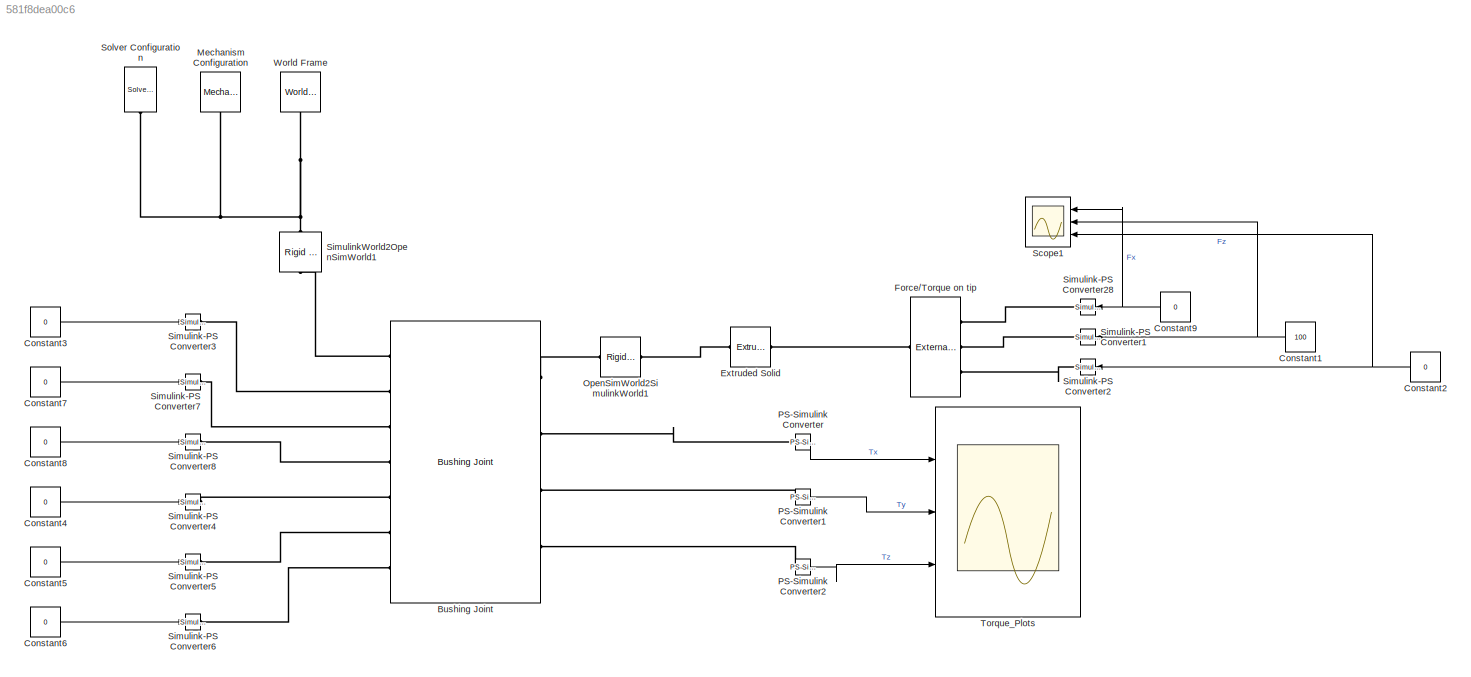
MODEL slx_581f8dea00c6
KIND model
CONFIG AbsTol = auto
CONFIG EnableMultiTasking = off
CONFIG FixedStep = auto
CONFIG MaxStep = auto
CONFIG MinStep = auto
CONFIG RelTol = 1e-3
CONFIG SampleTimeConstraint = Unconstrained
CONFIG SolverName = VariableStepAuto
CONFIG StartTime = 0.0
CONFIG StopTime = 1
BLOCK [Reference] Bushing Joint  REF=sm_lib/Joints/Bushing Joint
  Ports = [0, 0, 0, 0, 0, 7, 4]
  SourceBlock = sm_lib/Joints/Bushing Joint
  SourceProductBaseCode = MS
  SourceType = Bushing Joint
BLOCK [Constant] Constant1
  NameLocation = top
  Value = 100
BLOCK [Constant] Constant2
  NameLocation = top
  Value = 0
BLOCK [Constant] Constant3
  Value = 0
BLOCK [Constant] Constant4
  Value = 0
BLOCK [Constant] Constant5
  Value = 0
BLOCK [Constant] Constant6
  Value = 0
BLOCK [Constant] Constant7
  Value = 0
BLOCK [Constant] Constant8
  Value = 0
BLOCK [Constant] Constant9
  NameLocation = top
  Value = 0
BLOCK [Reference] Extruded Solid  REF=sm_lib/Body Elements/Extruded Solid
  NameLocation = top
  Ports = [0, 0, 0, 0, 0, 1, 1]
  SourceBlock = sm_lib/Body Elements/Extruded Solid
  SourceProductBaseCode = MS
  SourceType = Extruded Solid
BLOCK [Reference] Force//Torque on tip  REF=sm_lib/Forces and
Torques/External Force
and Torque
  NameLocation = top
  Ports = [0, 0, 0, 0, 0, 3, 1]
  SourceBlock = sm_lib/Forces and\nTorques/External Force\nand Torque
  SourceProductBaseCode = MS
  SourceType = External Force\nand Torque
BLOCK [Reference] Mechanism Configuration  REF=sm_lib/Utilities/Mechanism
Configuration
  NameLocation = left
  Ports = [0, 0, 0, 0, 0, 0, 1]
  SourceBlock = sm_lib/Utilities/Mechanism\nConfiguration
  SourceProductBaseCode = MS
  SourceType = Mechanism\nConfiguration
BLOCK [Reference] OpenSimWorld2SimulinkWorld1  REF=sm_lib/Frames and
Transforms/Rigid
Transform
  Ports = [0, 0, 0, 0, 0, 1, 1]
  SourceBlock = sm_lib/Frames and\nTransforms/Rigid\nTransform
  SourceProductBaseCode = MS
  SourceType = Rigid\nTransform
BLOCK [Reference] PS-Simulink Converter  REF=nesl_utility/PS-Simulink
Converter
  Ports = [0, 1, 0, 0, 0, 1]
  SourceBlock = nesl_utility/PS-Simulink\nConverter
  SourceProductBaseCode = PW,SS
  SourceType = PS-Simulink\nConverter
BLOCK [Reference] PS-Simulink Converter1  REF=nesl_utility/PS-Simulink
Converter
  Ports = [0, 1, 0, 0, 0, 1]
  SourceBlock = nesl_utility/PS-Simulink\nConverter
  SourceProductBaseCode = PW,SS
  SourceType = PS-Simulink\nConverter
BLOCK [Reference] PS-Simulink Converter2  REF=nesl_utility/PS-Simulink
Converter
  Ports = [0, 1, 0, 0, 0, 1]
  SourceBlock = nesl_utility/PS-Simulink\nConverter
  SourceProductBaseCode = PW,SS
  SourceType = PS-Simulink\nConverter
BLOCK [Scope] Scope1
  Floating = off
  NameLocation = top
  NumInputPorts = 3
  Ports = [3]
  ScopeSpecificationString = Simulink.scopes.TimeScopeBlockCfg('CurrentConfiguration', extmgr.ConfigurationSet(extmgr.Configuration('Core','General UI',true),extmgr.Configuration('Core','Source UI',true),extmgr.Configuration('Sources','WiredSimulink',true,'DataLoggingVariableName','ScopeData1'),extmgr.Configuration('Visuals','Time Domain',true,'SerializedDisplays',{struct('MinYLimReal','90.00000','MaxYLimReal','110.00000','YL...<+1943ch>
BLOCK [Reference] Simulink-PS Converter1  REF=nesl_utility/Simulink-PS
Converter
  NameLocation = top
  Ports = [1, 0, 0, 0, 0, 0, 1]
  SourceBlock = nesl_utility/Simulink-PS\nConverter
  SourceProductBaseCode = PW,SS
  SourceType = Simulink-PS\nConverter
BLOCK [Reference] Simulink-PS Converter2  REF=nesl_utility/Simulink-PS
Converter
  NameLocation = top
  Ports = [1, 0, 0, 0, 0, 0, 1]
  SourceBlock = nesl_utility/Simulink-PS\nConverter
  SourceProductBaseCode = PW,SS
  SourceType = Simulink-PS\nConverter
BLOCK [Reference] Simulink-PS Converter28  REF=nesl_utility/Simulink-PS
Converter
  NameLocation = top
  Ports = [1, 0, 0, 0, 0, 0, 1]
  SourceBlock = nesl_utility/Simulink-PS\nConverter
  SourceProductBaseCode = PW,SS
  SourceType = Simulink-PS\nConverter
BLOCK [Reference] Simulink-PS Converter3  REF=nesl_utility/Simulink-PS
Converter
  NameLocation = right
  Ports = [1, 0, 0, 0, 0, 0, 1]
  SourceBlock = nesl_utility/Simulink-PS\nConverter
  SourceProductBaseCode = PW,SS
  SourceType = Simulink-PS\nConverter
BLOCK [Reference] Simulink-PS Converter4  REF=nesl_utility/Simulink-PS
Converter
  NameLocation = right
  Ports = [1, 0, 0, 0, 0, 0, 1]
  SourceBlock = nesl_utility/Simulink-PS\nConverter
  SourceProductBaseCode = PW,SS
  SourceType = Simulink-PS\nConverter
BLOCK [Reference] Simulink-PS Converter5  REF=nesl_utility/Simulink-PS
Converter
  Ports = [1, 0, 0, 0, 0, 0, 1]
  SourceBlock = nesl_utility/Simulink-PS\nConverter
  SourceProductBaseCode = PW,SS
  SourceType = Simulink-PS\nConverter
BLOCK [Reference] Simulink-PS Converter6  REF=nesl_utility/Simulink-PS
Converter
  Ports = [1, 0, 0, 0, 0, 0, 1]
  SourceBlock = nesl_utility/Simulink-PS\nConverter
  SourceProductBaseCode = PW,SS
  SourceType = Simulink-PS\nConverter
BLOCK [Reference] Simulink-PS Converter7  REF=nesl_utility/Simulink-PS
Converter
  Ports = [1, 0, 0, 0, 0, 0, 1]
  SourceBlock = nesl_utility/Simulink-PS\nConverter
  SourceProductBaseCode = PW,SS
  SourceType = Simulink-PS\nConverter
BLOCK [Reference] Simulink-PS Converter8  REF=nesl_utility/Simulink-PS
Converter
  Ports = [1, 0, 0, 0, 0, 0, 1]
  SourceBlock = nesl_utility/Simulink-PS\nConverter
  SourceProductBaseCode = PW,SS
  SourceType = Simulink-PS\nConverter
BLOCK [Reference] SimulinkWorld2OpenSimWorld1  REF=sm_lib/Frames and
Transforms/Rigid
Transform
  NameLocation = left
  Ports = [0, 0, 0, 0, 0, 1, 1]
  SourceBlock = sm_lib/Frames and\nTransforms/Rigid\nTransform
  SourceProductBaseCode = MS
  SourceType = Rigid\nTransform
BLOCK [Reference] Solver Configuration  REF=nesl_utility/Solver
Configuration
  NameLocation = left
  Ports = [0, 0, 0, 0, 0, 0, 1]
  SourceBlock = nesl_utility/Solver\nConfiguration
  SourceProductBaseCode = PW,SS
  SourceType = Solver\nConfiguration
BLOCK [Scope] Torque_Plots
  Floating = off
  NumInputPorts = 3
  Ports = [3]
  ScopeSpecificationString = Simulink.scopes.TimeScopeBlockCfg('CurrentConfiguration', extmgr.ConfigurationSet(extmgr.Configuration('Core','General UI',true),extmgr.Configuration('Core','Source UI',true),extmgr.Configuration('Sources','WiredSimulink',true),extmgr.Configuration('Visuals','Time Domain',true,'SerializedDisplays',{struct('MinYLimReal','-11.25','MaxYLimReal','1.25','YLabelReal','','MinYLimMag','0.00000','MaxYLimMa...<+2066ch>
BLOCK [Reference] World Frame  REF=sm_lib/Frames and
Transforms/World Frame
  NameLocation = top
  Ports = [0, 0, 0, 0, 0, 0, 1]
  SourceBlock = sm_lib/Frames and\nTransforms/World Frame
  SourceProductBaseCode = MS
  SourceType = World Frame
NET Constant1:1 -> Scope1:2, Simulink-PS Converter1:1
NET Constant2:1 -> Scope1:3, Simulink-PS Converter2:1
LINE Constant3:1 -> Simulink-PS Converter3:1
LINE Constant4:1 -> Simulink-PS Converter4:1
LINE Constant5:1 -> Simulink-PS Converter5:1
LINE Constant6:1 -> Simulink-PS Converter6:1
LINE Constant7:1 -> Simulink-PS Converter7:1
LINE Constant8:1 -> Simulink-PS Converter8:1
NET Constant9:1 -> Scope1:1, Simulink-PS Converter28:1
LINE PS-Simulink Converter1:1 -> Torque_Plots:2
LINE PS-Simulink Converter2:1 -> Torque_Plots:3
LINE PS-Simulink Converter:1 -> Torque_Plots:1
PLINE Bushing Joint:LConn1 -- SimulinkWorld2OpenSimWorld1:RConn1
PLINE Bushing Joint:LConn2 -- Simulink-PS Converter3:RConn1
PLINE Bushing Joint:LConn3 -- Simulink-PS Converter7:RConn1
PLINE Bushing Joint:LConn4 -- Simulink-PS Converter8:RConn1
PLINE Bushing Joint:LConn5 -- Simulink-PS Converter4:RConn1
PLINE Bushing Joint:LConn6 -- Simulink-PS Converter5:RConn1
PLINE Bushing Joint:LConn7 -- Simulink-PS Converter6:RConn1
PLINE Bushing Joint:RConn1 -- OpenSimWorld2SimulinkWorld1:LConn1
PLINE Bushing Joint:RConn2 -- PS-Simulink Converter:LConn1
PLINE Bushing Joint:RConn3 -- PS-Simulink Converter1:LConn1
PLINE Bushing Joint:RConn4 -- PS-Simulink Converter2:LConn1
PLINE Extruded Solid:LConn1 -- OpenSimWorld2SimulinkWorld1:RConn1
PLINE Extruded Solid:RConn1 -- Force//Torque on tip:RConn1
PLINE Force//Torque on tip:LConn1 -- Simulink-PS Converter28:RConn1
PLINE Force//Torque on tip:LConn2 -- Simulink-PS Converter1:RConn1
PLINE Force//Torque on tip:LConn3 -- Simulink-PS Converter2:RConn1
PNET net1: Mechanism Configuration:RConn1 -- SimulinkWorld2OpenSimWorld1:LConn1 -- Solver Configuration:RConn1 -- World Frame:RConn1
note: NET lines group one-source signal fan-out (src -> all destinations, sorted); 1:1 wires keep LINE; PNET lines group multi-terminal physical nets as a canonical sorted terminal list (undirected conserving connections); 2-terminal nets keep the pairwise PLINE form
